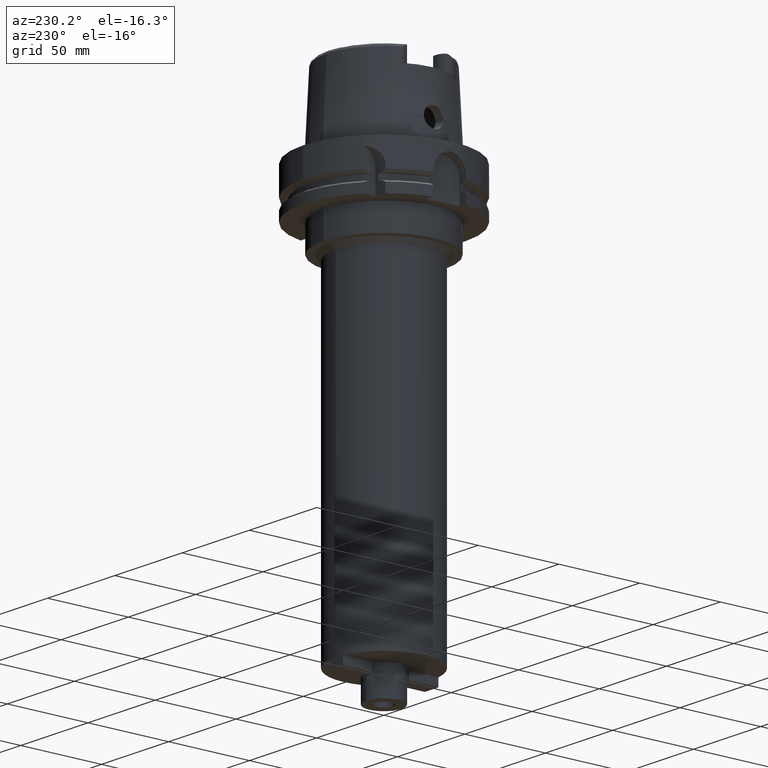
[diagram: clean part render]
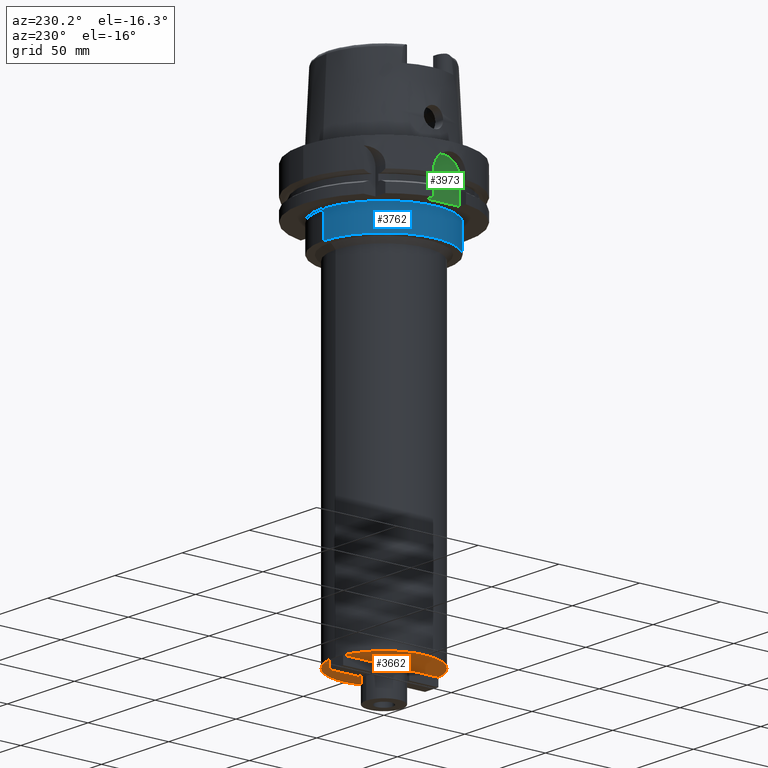
[diagram: same view with three faces highlighted in distinct colors, each labeled with its STEP entity id]
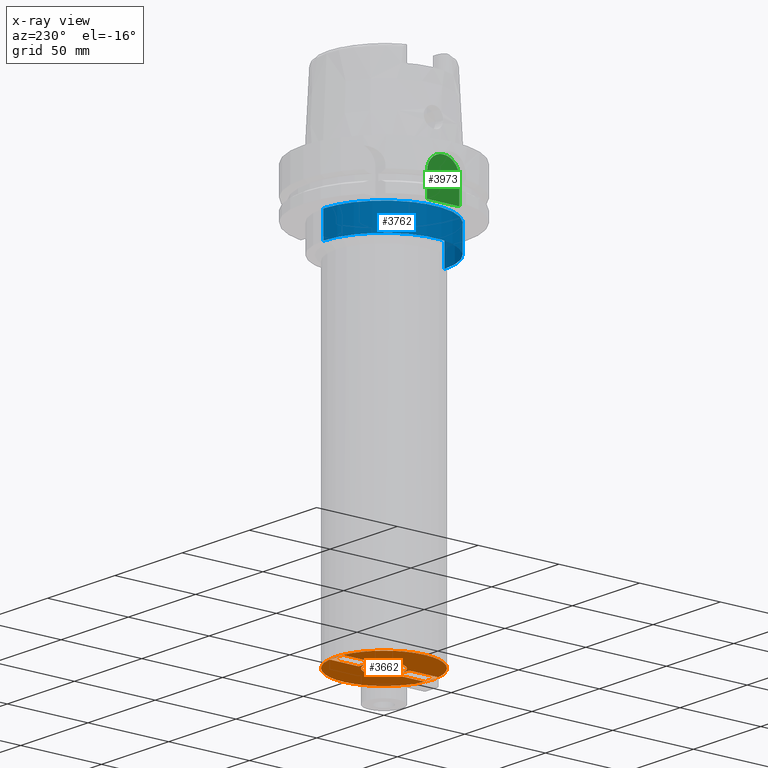
[diagram: x-ray of the same camera — body ghosted, the three highlighted faces saturated]
A machine part, auxiliary view with three faces highlighted in distinct colors.
The next image is the same camera in x-ray (body ghosted, the three faces saturated) — at least one of them is partly hidden behind the body in this view.
Their STEP definitions:

[orange] entity #3662 — the highlighted planar face has unit normal (0, 0, 1).
#1125=CARTESIAN_POINT('',(0.E0,0.E0,-2.5E2));
#1126=DIRECTION('',(0.E0,0.E0,1.E0));
#1127=DIRECTION('',(0.E0,-1.E0,0.E0));
#1128=AXIS2_PLACEMENT_3D('',#1125,#1126,#1127);
#1133=CARTESIAN_POINT('',(0.E0,0.E0,-2.5E2));
#1134=DIRECTION('',(0.E0,0.E0,1.E0));
#1135=DIRECTION('',(0.E0,1.E0,0.E0));
#1136=AXIS2_PLACEMENT_3D('',#1133,#1134,#1135);
#1141=CARTESIAN_POINT('',(0.E0,0.E0,-2.5E2));
#1142=DIRECTION('',(0.E0,0.E0,-1.E0));
#1143=DIRECTION('',(0.E0,-1.E0,0.E0));
#1144=AXIS2_PLACEMENT_3D('',#1141,#1142,#1143);
#1149=CARTESIAN_POINT('',(0.E0,0.E0,-2.5E2));
#1150=DIRECTION('',(0.E0,0.E0,-1.E0));
#1151=DIRECTION('',(0.E0,1.E0,0.E0));
#1152=AXIS2_PLACEMENT_3D('',#1149,#1150,#1151);
#1157=DIRECTION('',(0.E0,1.E0,0.E0));
#1158=VECTOR('',#1157,1.8E1);
#1159=CARTESIAN_POINT('',(-5.E0,1.15E1,-2.5E2));
#1160=LINE('',#1159,#1158);
#1164=DIRECTION('',(-1.E0,0.E0,0.E0));
#1165=VECTOR('',#1164,1.E1);
#1166=CARTESIAN_POINT('',(5.E0,1.15E1,-2.5E2));
#1167=LINE('',#1166,#1165);
#1171=DIRECTION('',(0.E0,-1.E0,0.E0));
#1172=VECTOR('',#1171,1.8E1);
#1173=CARTESIAN_POINT('',(5.E0,-1.15E1,-2.5E2));
#1174=LINE('',#1173,#1172);
#1178=DIRECTION('',(1.E0,0.E0,0.E0));
#1179=VECTOR('',#1178,1.E1);
#1180=CARTESIAN_POINT('',(-5.E0,-1.15E1,-2.5E2));
#1181=LINE('',#1180,#1179);
#2223=DIRECTION('',(0.E0,1.E0,0.E0));
#2224=VECTOR('',#2223,1.8E1);
#2225=CARTESIAN_POINT('',(5.E0,1.15E1,-2.5E2));
#2226=LINE('',#2225,#2224);
#2251=DIRECTION('',(-1.E0,0.E0,0.E0));
#2252=VECTOR('',#2251,1.E1);
#2253=CARTESIAN_POINT('',(5.E0,2.95E1,-2.5E2));
#2254=LINE('',#2253,#2252);
#2293=DIRECTION('',(0.E0,-1.E0,0.E0));
#2294=VECTOR('',#2293,1.8E1);
#2295=CARTESIAN_POINT('',(-5.E0,-1.15E1,-2.5E2));
#2296=LINE('',#2295,#2294);
#2321=DIRECTION('',(1.E0,0.E0,0.E0));
#2322=VECTOR('',#2321,1.E1);
#2323=CARTESIAN_POINT('',(-5.E0,-2.95E1,-2.5E2));
#2324=LINE('',#2323,#2322);
#2600=CARTESIAN_POINT('',(0.E0,1.1E1,-2.5E2));
#2601=VERTEX_POINT('',#2600);
#2602=CARTESIAN_POINT('',(0.E0,-1.1E1,-2.5E2));
#2603=VERTEX_POINT('',#2602);
#2604=CARTESIAN_POINT('',(0.E0,-3.E1,-2.5E2));
#2605=CARTESIAN_POINT('',(0.E0,3.E1,-2.5E2));
#2606=VERTEX_POINT('',#2604);
#2607=VERTEX_POINT('',#2605);
#2608=CARTESIAN_POINT('',(-5.E0,1.15E1,-2.5E2));
#2609=CARTESIAN_POINT('',(-5.E0,2.95E1,-2.5E2));
#2610=VERTEX_POINT('',#2608);
#2611=VERTEX_POINT('',#2609);
#2612=CARTESIAN_POINT('',(5.E0,2.95E1,-2.5E2));
#2613=VERTEX_POINT('',#2612);
#2614=CARTESIAN_POINT('',(5.E0,1.15E1,-2.5E2));
#2615=VERTEX_POINT('',#2614);
#2616=CARTESIAN_POINT('',(5.E0,-1.15E1,-2.5E2));
#2617=CARTESIAN_POINT('',(5.E0,-2.95E1,-2.5E2));
#2618=VERTEX_POINT('',#2616);
#2619=VERTEX_POINT('',#2617);
#2620=CARTESIAN_POINT('',(-5.E0,-2.95E1,-2.5E2));
#2621=VERTEX_POINT('',#2620);
#2622=CARTESIAN_POINT('',(-5.E0,-1.15E1,-2.5E2));
#2623=VERTEX_POINT('',#2622);
#3627=CARTESIAN_POINT('',(0.E0,0.E0,-2.5E2));
#3628=DIRECTION('',(0.E0,0.E0,1.E0));
#3629=DIRECTION('',(0.E0,1.E0,0.E0));
#3630=AXIS2_PLACEMENT_3D('',#3627,#3628,#3629);
#3631=PLANE('',#3630);
#3633=ORIENTED_EDGE('',*,*,#3632,.T.);
#3635=ORIENTED_EDGE('',*,*,#3634,.T.);
#3636=EDGE_LOOP('',(#3633,#3635));
#3637=FACE_OUTER_BOUND('',#3636,.F.);
#3638=ORIENTED_EDGE('',*,*,#3620,.T.);
#3639=ORIENTED_EDGE('',*,*,#3609,.T.);
#3640=EDGE_LOOP('',(#3638,#3639));
#3641=FACE_BOUND('',#3640,.F.);
#3643=ORIENTED_EDGE('',*,*,#3642,.T.);
#3645=ORIENTED_EDGE('',*,*,#3644,.F.);
#3647=ORIENTED_EDGE('',*,*,#3646,.F.);
#3649=ORIENTED_EDGE('',*,*,#3648,.T.);
#3650=EDGE_LOOP('',(#3643,#3645,#3647,#3649));
#3651=FACE_BOUND('',#3650,.F.);
#3653=ORIENTED_EDGE('',*,*,#3652,.T.);
#3655=ORIENTED_EDGE('',*,*,#3654,.F.);
#3657=ORIENTED_EDGE('',*,*,#3656,.F.);
#3659=ORIENTED_EDGE('',*,*,#3658,.T.);
#3660=EDGE_LOOP('',(#3653,#3655,#3657,#3659));
#3661=FACE_BOUND('',#3660,.F.);
#1129=CIRCLE('',#1128,3.E1);
#1137=CIRCLE('',#1136,3.E1);
#1145=CIRCLE('',#1144,1.1E1);
#1153=CIRCLE('',#1152,1.1E1);
#3609=EDGE_CURVE('',#2601,#2603,#1153,.T.);
#3620=EDGE_CURVE('',#2603,#2601,#1145,.T.);
#3632=EDGE_CURVE('',#2606,#2607,#1129,.T.);
#3634=EDGE_CURVE('',#2607,#2606,#1137,.T.);
#3642=EDGE_CURVE('',#2610,#2611,#1160,.T.);
#3644=EDGE_CURVE('',#2613,#2611,#2254,.T.);
#3646=EDGE_CURVE('',#2615,#2613,#2226,.T.);
#3648=EDGE_CURVE('',#2615,#2610,#1167,.T.);
#3652=EDGE_CURVE('',#2618,#2619,#1174,.T.);
#3654=EDGE_CURVE('',#2621,#2619,#2324,.T.);
#3656=EDGE_CURVE('',#2623,#2621,#2296,.T.);
#3658=EDGE_CURVE('',#2623,#2618,#1181,.T.);
#3662=ADVANCED_FACE('',(#3637,#3641,#3651,#3661),#3631,.F.);

[blue] entity #3762 — the highlighted cylindrical surface (partial cylindrical patch) has radius 37.5 mm, axis along (0, 0, 1).
#1237=CARTESIAN_POINT('',(0.E0,0.E0,-4.5E1));
#1238=DIRECTION('',(0.E0,0.E0,1.E0));
#1239=DIRECTION('',(0.E0,1.E0,0.E0));
#1240=AXIS2_PLACEMENT_3D('',#1237,#1238,#1239);
#1261=DIRECTION('',(0.E0,0.E0,-1.E0));
#1262=VECTOR('',#1261,1.6E1);
#1263=CARTESIAN_POINT('',(0.E0,3.75E1,-2.9E1));
#1264=LINE('',#1263,#1262);
#1268=DIRECTION('',(0.E0,0.E0,-1.E0));
#1269=VECTOR('',#1268,1.6E1);
#1270=CARTESIAN_POINT('',(0.E0,-3.75E1,-2.9E1));
#1271=LINE('',#1270,#1269);
#1336=CARTESIAN_POINT('',(0.E0,0.E0,-2.9E1));
#1337=DIRECTION('',(0.E0,0.E0,-1.E0));
#1338=DIRECTION('',(0.E0,-1.E0,0.E0));
#1339=AXIS2_PLACEMENT_3D('',#1336,#1337,#1338);
#2632=CARTESIAN_POINT('',(0.E0,-3.75E1,-4.5E1));
#2633=CARTESIAN_POINT('',(0.E0,3.75E1,-4.5E1));
#2634=VERTEX_POINT('',#2632);
#2635=VERTEX_POINT('',#2633);
#2636=CARTESIAN_POINT('',(0.E0,3.75E1,-2.9E1));
#2637=VERTEX_POINT('',#2636);
#2638=CARTESIAN_POINT('',(0.E0,-3.75E1,-2.9E1));
#2639=VERTEX_POINT('',#2638);
#3750=CARTESIAN_POINT('',(0.E0,0.E0,-2.839E2));
#3751=DIRECTION('',(0.E0,0.E0,1.E0));
#3752=DIRECTION('',(0.E0,1.E0,0.E0));
#3753=AXIS2_PLACEMENT_3D('',#3750,#3751,#3752);
#3754=CYLINDRICAL_SURFACE('',#3753,3.75E1);
#3755=ORIENTED_EDGE('',*,*,#3740,.F.);
#3757=ORIENTED_EDGE('',*,*,#3756,.F.);
#3758=ORIENTED_EDGE('',*,*,#3743,.T.);
#3759=ORIENTED_EDGE('',*,*,#3726,.F.);
#3760=EDGE_LOOP('',(#3755,#3757,#3758,#3759));
#3761=FACE_OUTER_BOUND('',#3760,.F.);
#1241=CIRCLE('',#1240,3.75E1);
#1340=CIRCLE('',#1339,3.75E1);
#3726=EDGE_CURVE('',#2635,#2634,#1241,.T.);
#3740=EDGE_CURVE('',#2637,#2635,#1264,.T.);
#3743=EDGE_CURVE('',#2639,#2634,#1271,.T.);
#3756=EDGE_CURVE('',#2639,#2637,#1340,.T.);
#3762=ADVANCED_FACE('',(#3761),#3754,.T.);

[green] entity #3973 — the highlighted planar face has unit normal (1, 0, 0).
#1477=DIRECTION('',(0.E0,0.E0,1.E0));
#1478=VECTOR('',#1477,1.4E1);
#1479=CARTESIAN_POINT('',(-4.4E1,-1.E1,-2.9E1));
#1480=LINE('',#1479,#1478);
#1491=DIRECTION('',(0.E0,1.E0,0.E0));
#1492=VECTOR('',#1491,2.E1);
#1493=CARTESIAN_POINT('',(-4.4E1,-1.E1,-2.9E1));
#1494=LINE('',#1493,#1492);
#1498=CARTESIAN_POINT('',(-4.4E1,0.E0,-1.5E1));
#1499=DIRECTION('',(1.E0,0.E0,0.E0));
#1500=DIRECTION('',(0.E0,1.E0,0.E0));
#1501=AXIS2_PLACEMENT_3D('',#1498,#1499,#1500);
#1506=CARTESIAN_POINT('',(-4.4E1,0.E0,-1.5E1));
#1507=DIRECTION('',(1.E0,0.E0,0.E0));
#1508=DIRECTION('',(0.E0,0.E0,1.E0));
#1509=AXIS2_PLACEMENT_3D('',#1506,#1507,#1508);
#1528=DIRECTION('',(0.E0,0.E0,-1.E0));
#1529=VECTOR('',#1528,1.4E1);
#1530=CARTESIAN_POINT('',(-4.4E1,1.E1,-1.5E1));
#1531=LINE('',#1530,#1529);
#2648=CARTESIAN_POINT('',(-4.4E1,1.E1,-2.9E1));
#2649=VERTEX_POINT('',#2648);
#2650=CARTESIAN_POINT('',(-4.4E1,-1.E1,-2.9E1));
#2651=VERTEX_POINT('',#2650);
#2694=CARTESIAN_POINT('',(-4.4E1,-1.E1,-1.5E1));
#2695=VERTEX_POINT('',#2694);
#2707=CARTESIAN_POINT('',(-4.4E1,1.E1,-1.5E1));
#2708=VERTEX_POINT('',#2707);
#2709=CARTESIAN_POINT('',(-4.4E1,0.E0,-5.E0));
#2710=VERTEX_POINT('',#2709);
#3958=CARTESIAN_POINT('',(-4.4E1,0.E0,0.E0));
#3959=DIRECTION('',(1.E0,0.E0,0.E0));
#3960=DIRECTION('',(0.E0,0.E0,1.E0));
#3961=AXIS2_PLACEMENT_3D('',#3958,#3959,#3960);
#3962=PLANE('',#3961);
#3963=ORIENTED_EDGE('',*,*,#3776,.T.);
#3965=ORIENTED_EDGE('',*,*,#3964,.F.);
#3967=ORIENTED_EDGE('',*,*,#3966,.T.);
#3969=ORIENTED_EDGE('',*,*,#3968,.T.);
#3970=ORIENTED_EDGE('',*,*,#3938,.F.);
#3971=EDGE_LOOP('',(#3963,#3965,#3967,#3969,#3970));
#3972=FACE_OUTER_BOUND('',#3971,.F.);
#1502=CIRCLE('',#1501,1.E1);
#1510=CIRCLE('',#1509,1.E1);
#3776=EDGE_CURVE('',#2651,#2649,#1494,.T.);
#3938=EDGE_CURVE('',#2651,#2695,#1480,.T.);
#3964=EDGE_CURVE('',#2708,#2649,#1531,.T.);
#3966=EDGE_CURVE('',#2708,#2710,#1502,.T.);
#3968=EDGE_CURVE('',#2710,#2695,#1510,.T.);
#3973=ADVANCED_FACE('',(#3972),#3962,.F.);